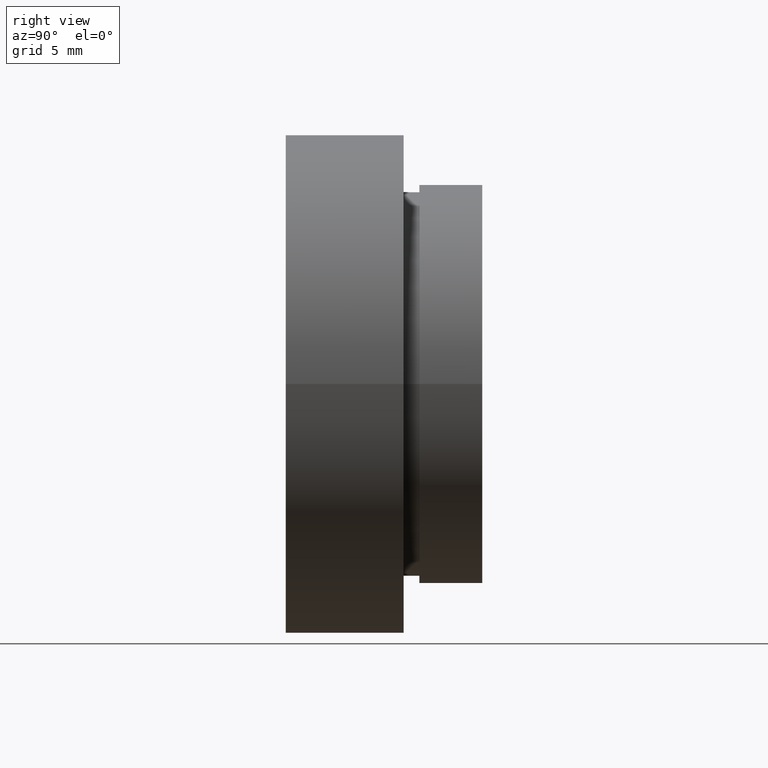
[diagram: clean part render]
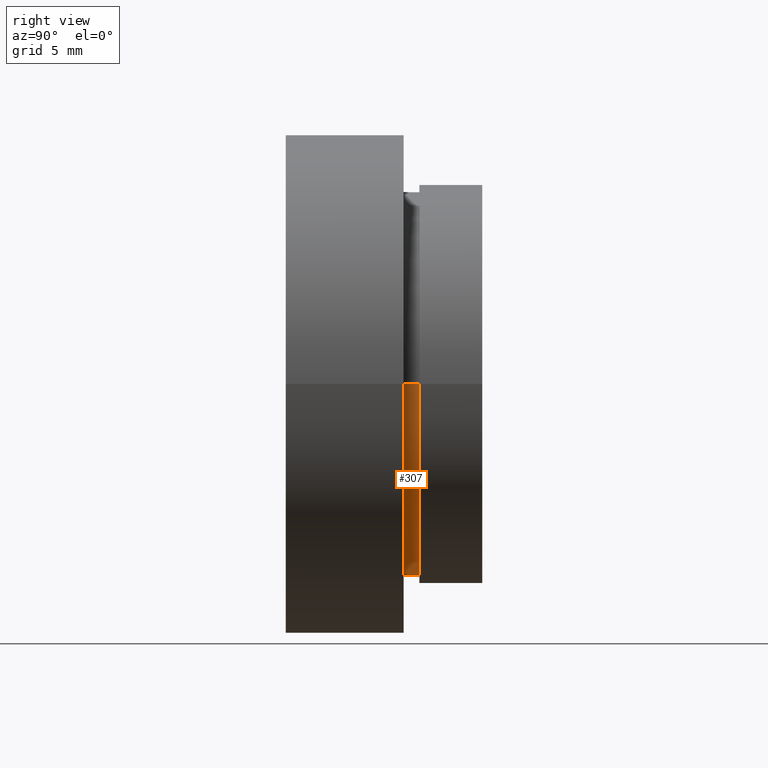
[diagram: same view with one face highlighted and labeled with its STEP entity id]
A machine part, right view. The second image highlights one B-rep face of the part: STEP entity #307.
In plain terms, the highlighted cylindrical surface (partial cylindrical patch) has radius 12.2 mm, axis along (-0, 1, -0).
Its self-contained STEP definition (entity closure, byte-faithful):
#11 = DIRECTION ( 'NONE',  ( -1.224646799147351000E-016, 1.000000000000000000, -0.0000000000000000000 ) ) ;
#23 = AXIS2_PLACEMENT_3D ( 'NONE', #38, #42, #43 ) ;
#29 = VERTEX_POINT ( 'NONE', #447 ) ;
#38 = CARTESIAN_POINT ( 'NONE',  ( 1.149455719078122700E-015, 7.499999999999998200, 0.0000000000000000000 ) ) ;
#42 = DIRECTION ( 'NONE',  ( -1.224646799147351000E-016, 1.000000000000000000, -0.0000000000000000000 ) ) ;
#43 = DIRECTION ( 'NONE',  ( -1.000000000000000000, -1.421904488505579700E-016, 0.0000000000000000000 ) ) ;
#45 = ORIENTED_EDGE ( 'NONE', *, *, #159, .T. ) ;
#69 = CARTESIAN_POINT ( 'NONE',  ( 12.20000000000000100, 7.500000000000000000, 1.494069094959770900E-015 ) ) ;
#96 = EDGE_CURVE ( 'NONE', #466, #29, #130, .T. ) ;
#130 = CIRCLE ( 'NONE', #458, 12.19999999999999900 ) ;
#134 = ORIENTED_EDGE ( 'NONE', *, *, #441, .T. ) ;
#139 = EDGE_LOOP ( 'NONE', ( #360, #134, #45, #624 ) ) ;
#144 = CARTESIAN_POINT ( 'NONE',  ( -12.19999999999999800, 7.499999999999996400, 0.0000000000000000000 ) ) ;
#159 = EDGE_CURVE ( 'NONE', #467, #29, #617, .T. ) ;
#190 = FACE_OUTER_BOUND ( 'NONE', #139, .T. ) ;
#226 = DIRECTION ( 'NONE',  ( -1.224646799147351000E-016, 1.000000000000000000, -0.0000000000000000000 ) ) ;
#239 = CYLINDRICAL_SURFACE ( 'NONE', #394, 12.19999999999999900 ) ;
#266 = CIRCLE ( 'NONE', #23, 12.19999999999999900 ) ;
#278 = DIRECTION ( 'NONE',  ( -1.000000000000000000, -1.421904488505579700E-016, 0.0000000000000000000 ) ) ;
#286 = VECTOR ( 'NONE', #298, 1000.000000000000000 ) ;
#298 = DIRECTION ( 'NONE',  ( -1.224646799147351000E-016, 1.000000000000000000, -0.0000000000000000000 ) ) ;
#307 = ADVANCED_FACE ( 'NONE', ( #190 ), #239, .T. ) ;
#320 = CARTESIAN_POINT ( 'NONE',  ( 0.0000000000000000000, 16.88601823708207700, 0.0000000000000000000 ) ) ;
#340 = CARTESIAN_POINT ( 'NONE',  ( 12.20000000000000100, 8.500000000000000000, 1.494069094959770900E-015 ) ) ;
#353 = CARTESIAN_POINT ( 'NONE',  ( 12.19999999999999900, 16.88601823708207700, 1.494069094959770900E-015 ) ) ;
#360 = ORIENTED_EDGE ( 'NONE', *, *, #524, .F. ) ;
#377 = LINE ( 'NONE', #353, #286 ) ;
#391 = VERTEX_POINT ( 'NONE', #69 ) ;
#394 = AXIS2_PLACEMENT_3D ( 'NONE', #320, #597, #592 ) ;
#441 = EDGE_CURVE ( 'NONE', #391, #467, #266, .T. ) ;
#443 = CARTESIAN_POINT ( 'NONE',  ( -12.19999999999999900, 16.88601823708207700, 0.0000000000000000000 ) ) ;
#447 = CARTESIAN_POINT ( 'NONE',  ( -12.19999999999999800, 8.499999999999996400, 0.0000000000000000000 ) ) ;
#458 = AXIS2_PLACEMENT_3D ( 'NONE', #555, #226, #278 ) ;
#466 = VERTEX_POINT ( 'NONE', #340 ) ;
#467 = VERTEX_POINT ( 'NONE', #144 ) ;
#524 = EDGE_CURVE ( 'NONE', #391, #466, #377, .T. ) ;
#555 = CARTESIAN_POINT ( 'NONE',  ( 1.026991039163387700E-015, 8.499999999999998200, 0.0000000000000000000 ) ) ;
#592 = DIRECTION ( 'NONE',  ( -1.000000000000000000, 0.0000000000000000000, 0.0000000000000000000 ) ) ;
#597 = DIRECTION ( 'NONE',  ( -1.224646799147351000E-016, 1.000000000000000000, -0.0000000000000000000 ) ) ;
#605 = VECTOR ( 'NONE', #11, 1000.000000000000000 ) ;
#617 = LINE ( 'NONE', #443, #605 ) ;
#624 = ORIENTED_EDGE ( 'NONE', *, *, #96, .F. ) ;